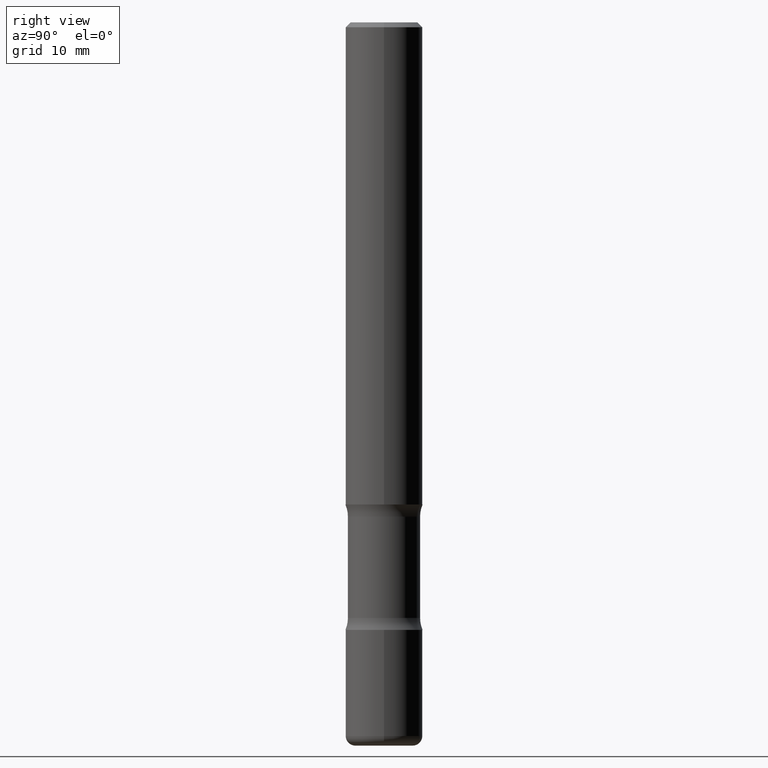
[diagram: clean part render]
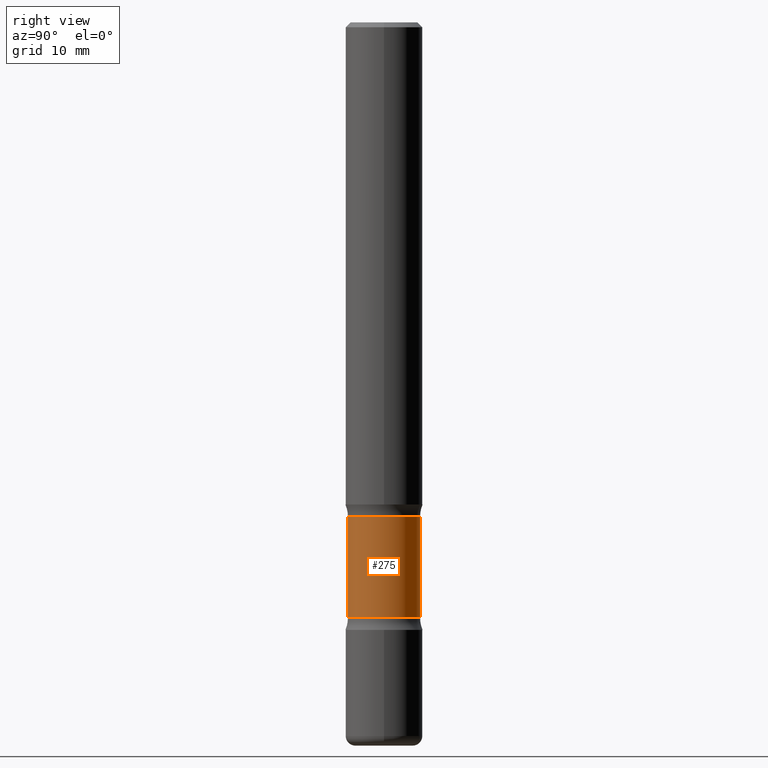
[diagram: same view with one face highlighted and labeled with its STEP entity id]
A machine part, right view. The second image highlights one B-rep face of the part: STEP entity #275.
In plain terms, the highlighted cylindrical surface (edge-blend (fillet) strip) has radius 3.7427 mm, axis along (0, -0, -1).
Its self-contained STEP definition (entity closure, byte-faithful):
#24 = CARTESIAN_POINT ( 'NONE',  ( -1.045711407310277305E-15, -0.1473500000000070587, -2.017840424602955984 ) ) ;
#50 = ORIENTED_EDGE ( 'NONE', *, *, #59, .T. ) ;
#54 = EDGE_CURVE ( 'NONE', #349, #482, #270, .T. ) ;
#59 = EDGE_CURVE ( 'NONE', #237, #482, #464, .T. ) ;
#61 = AXIS2_PLACEMENT_3D ( 'NONE', #304, #133, #178 ) ;
#78 = AXIS2_PLACEMENT_3D ( 'NONE', #345, #80, #556 ) ;
#80 = DIRECTION ( 'NONE',  ( 2.474888810202925163E-29, -3.449350218607033250E-15, -1.000000000000000000 ) ) ;
#81 = CARTESIAN_POINT ( 'NONE',  ( 5.943628762121094077E-29, -8.490077908476165751E-15, -2.431059575397043204 ) ) ;
#98 = VERTEX_POINT ( 'NONE', #162 ) ;
#117 = FACE_OUTER_BOUND ( 'NONE', #457, .T. ) ;
#133 = DIRECTION ( 'NONE',  ( 2.474888810202925163E-29, -3.449350218607033250E-15, -1.000000000000000000 ) ) ;
#158 = ORIENTED_EDGE ( 'NONE', *, *, #54, .F. ) ;
#162 = CARTESIAN_POINT ( 'NONE',  ( 1.028939550557120386E-15, 0.1473499999999929033, -2.017840424602956872 ) ) ;
#164 = CARTESIAN_POINT ( 'NONE',  ( 1.028939550557130839E-15, 0.1473499999999915433, -2.431059575397043648 ) ) ;
#177 = CARTESIAN_POINT ( 'NONE',  ( -1.045711407310266063E-15, -0.1473500000000085020, -2.431059575397042760 ) ) ;
#178 = DIRECTION ( 'NONE',  ( 6.982962677686265133E-15, 1.000000000000000000, -3.707971487837480522E-15 ) ) ;
#179 = CIRCLE ( 'NONE', #61, 0.1473499999999999810 ) ;
#206 = DIRECTION ( 'NONE',  ( 2.474888810202925163E-29, -3.449350218607033250E-15, -1.000000000000000000 ) ) ;
#237 = VERTEX_POINT ( 'NONE', #24 ) ;
#241 = VECTOR ( 'NONE', #549, 39.37007874015748143 ) ;
#270 = CIRCLE ( 'NONE', #415, 0.1473500000000000087 ) ;
#275 = ADVANCED_FACE ( 'NONE', ( #117 ), #389, .T. ) ;
#304 = CARTESIAN_POINT ( 'NONE',  ( 4.920957309659253149E-29, -7.064740340351969652E-15, -2.017840424602956428 ) ) ;
#345 = CARTESIAN_POINT ( 'NONE',  ( 7.234878300801473340E-29, -1.028974335613649852E-14, -2.952799999999999869 ) ) ;
#349 = VERTEX_POINT ( 'NONE', #164 ) ;
#377 = ORIENTED_EDGE ( 'NONE', *, *, #430, .T. ) ;
#389 = CYLINDRICAL_SURFACE ( 'NONE', #78, 0.1473500000000000087 ) ;
#390 = ORIENTED_EDGE ( 'NONE', *, *, #447, .F. ) ;
#415 = AXIS2_PLACEMENT_3D ( 'NONE', #81, #206, #419 ) ;
#419 = DIRECTION ( 'NONE',  ( 6.982962677686266711E-15, 1.000000000000000000, -3.707971487837479733E-15 ) ) ;
#430 = EDGE_CURVE ( 'NONE', #98, #237, #179, .T. ) ;
#447 = EDGE_CURVE ( 'NONE', #98, #349, #527, .T. ) ;
#457 = EDGE_LOOP ( 'NONE', ( #377, #50, #158, #390 ) ) ;
#464 = LINE ( 'NONE', #467, #241 ) ;
#467 = CARTESIAN_POINT ( 'NONE',  ( -1.010894379971562693E-15, -0.1473500000000103061, -2.952799999999998981 ) ) ;
#470 = DIRECTION ( 'NONE',  ( 2.474888810202925163E-29, -3.449350218607032856E-15, -1.000000000000000000 ) ) ;
#481 = CARTESIAN_POINT ( 'NONE',  ( 1.028939550557143658E-15, 0.1473499999999897114, -2.952800000000000313 ) ) ;
#482 = VERTEX_POINT ( 'NONE', #177 ) ;
#504 = VECTOR ( 'NONE', #470, 39.37007874015748143 ) ;
#527 = LINE ( 'NONE', #481, #504 ) ;
#549 = DIRECTION ( 'NONE',  ( 2.474888810202925163E-29, -3.449350218607032856E-15, -1.000000000000000000 ) ) ;
#556 = DIRECTION ( 'NONE',  ( 6.982962677686265133E-15, 1.000000000000000000, -3.707971487837479733E-15 ) ) ;